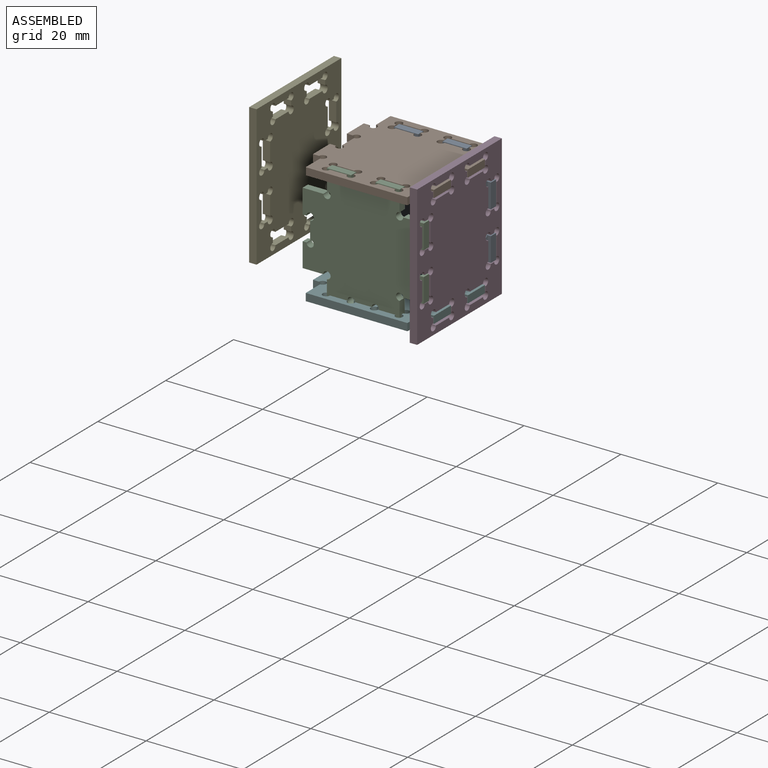
[diagram: assembled view]
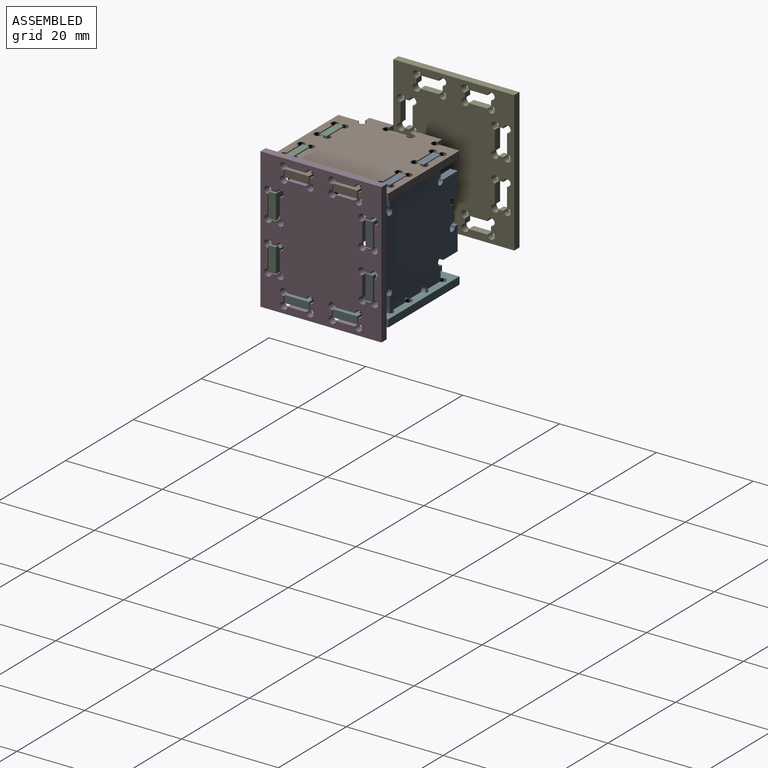
[diagram: assembled view, second angle]
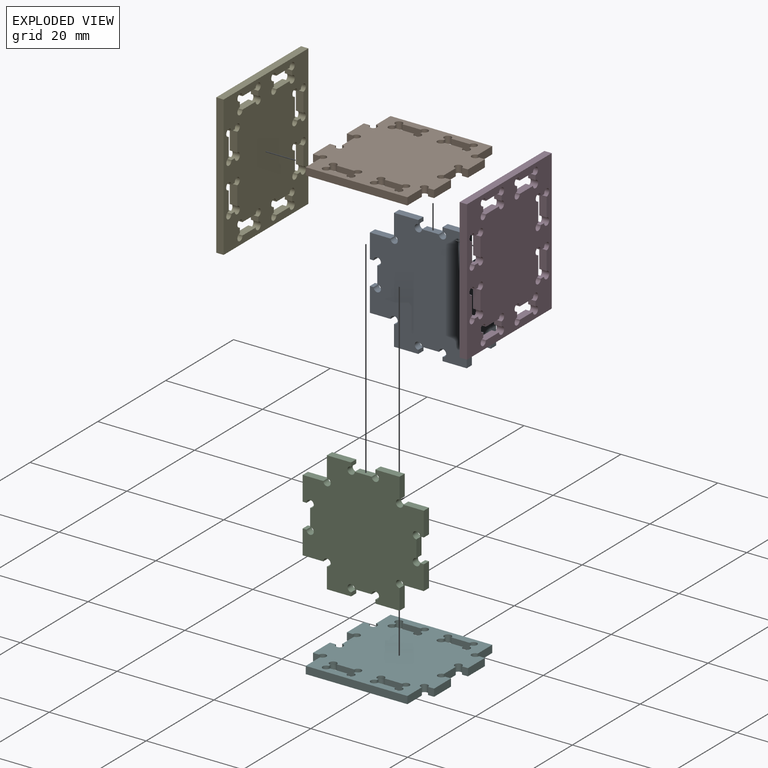
[diagram: exploded view]
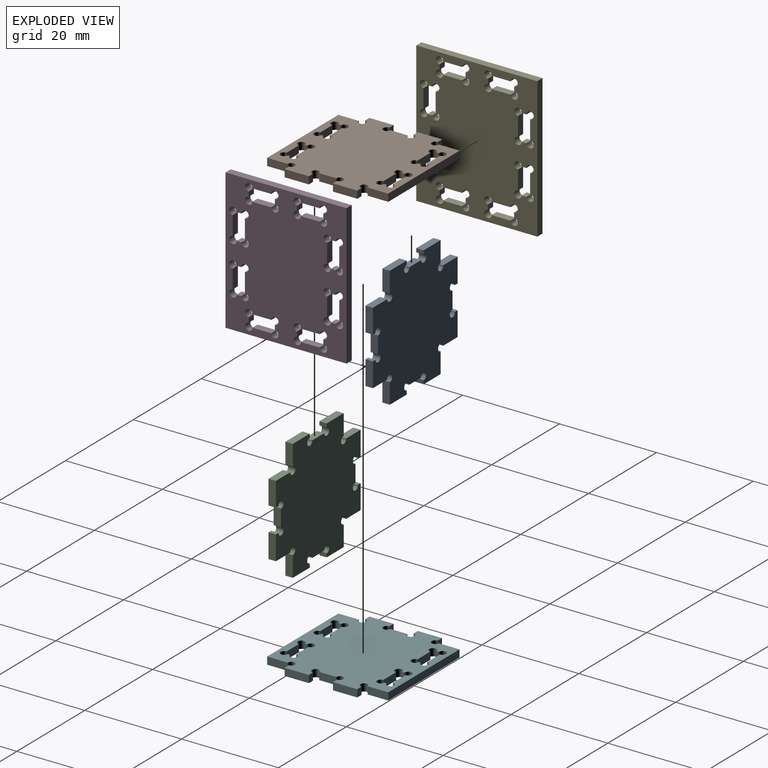
[diagram: exploded view, second angle]
ASSEMBLY  parts=6 mates=4
PART A: 42 faces, bbox 25x1.5x25 mm
  f0: cylinder r=0.75mm len=1.53mm, axis (0,1,0), area 5.4mm2, adj f1,f39,f40,f41
  f1: plane 1.53x0.76mm, normal (-1,0,0), area 1.2mm2, adj f0,f2,f40,f41
  f2: plane 5x1.53mm, normal (0,0,-1), area 7.7mm2, adj f1,f3,f40,f41
  f3: plane 4.23x1.53mm, normal (1,0,0), area 6.5mm2, adj f2,f4,f40,f41
  f4: cylinder r=0.75mm len=1.53mm, axis (0,1,0), area 5.4mm2, adj f3,f5,f40,f41
  f5: plane 4.24x1.53mm, normal (0,0,-1), area 6.5mm2, adj f4,f6,f40,f41
  f6: plane 5x1.53mm, normal (1,0,0), area 7.6mm2, adj f5,f7,f40,f41
  f7: plane 1.53x0.77mm, normal (0,0,1), area 1.2mm2, adj f6,f8,f40,f41
  f8: cylinder r=0.75mm len=1.53mm, axis (0,1,0), area 5.4mm2, adj f7,f9,f40,f41
  f9: plane 3.5x1.53mm, normal (1,0,0), area 5.4mm2, adj f8,f10,f40,f41
  f10: cylinder r=0.75mm len=1.53mm, axis (0,1,0), area 5.4mm2, adj f9,f11,f40,f41
  f11: plane 1.53x0.78mm, normal (0,0,-1), area 1.2mm2, adj f10,f12,f40,f41
  f12: plane 5x1.53mm, normal (1,0,0), area 7.7mm2, adj f11,f13,f40,f41
  f13: plane 4.25x1.53mm, normal (0,0,1), area 6.5mm2, adj f12,f14,f40,f41
  f14: cylinder r=0.75mm len=1.53mm, axis (0,1,0), area 5.4mm2, adj f13,f15,f40,f41
  f15: plane 4.25x1.53mm, normal (1,0,0), area 6.5mm2, adj f14,f16,f40,f41
  f16: plane 5x1.53mm, normal (0,0,1), area 7.7mm2, adj f15,f17,f40,f41
  f17: plane 1.53x0.78mm, normal (-1,0,0), area 1.2mm2, adj f16,f18,f40,f41
  f18: cylinder r=0.75mm len=1.53mm, axis (0,1,0), area 5.4mm2, adj f17,f19,f40,f41
  f19: plane 3.5x1.53mm, normal (0,0,1), area 5.4mm2, adj f18,f20,f40,f41
  f20: cylinder r=0.75mm len=1.53mm, axis (0,1,0), area 5.4mm2, adj f19,f21,f40,f41
  f21: plane 1.53x0.78mm, normal (1,0,0), area 1.2mm2, adj f20,f22,f40,f41
  f22: plane 5x1.53mm, normal (0,0,1), area 7.7mm2, adj f21,f23,f40,f41
  f23: plane 4.27x1.53mm, normal (-1,0,0), area 6.5mm2, adj f22,f24,f40,f41
  f24: cylinder r=0.75mm len=1.53mm, axis (0,1,0), area 5.5mm2, adj f23,f25,f40,f41
  f25: plane 4.27x1.53mm, normal (0,0,1), area 6.5mm2, adj f24,f26,f40,f41
  f26: plane 5x1.53mm, normal (-1,0,0), area 7.7mm2, adj f25,f27,f40,f41
  f27: plane 1.53x0.79mm, normal (0,0,-1), area 1.2mm2, adj f26,f28,f40,f41
  f28: cylinder r=0.75mm len=1.53mm, axis (0,1,0), area 5.4mm2, adj f27,f29,f40,f41
  f29: plane 3.49x1.53mm, normal (-1,0,0), area 5.3mm2, adj f28,f30,f40,f41
  f30: cylinder r=0.75mm len=1.53mm, axis (0,1,0), area 5.4mm2, adj f29,f31,f40,f41
  f31: plane 1.53x0.79mm, normal (0,0,1), area 1.2mm2, adj f30,f32,f40,f41
  f32: plane 5x1.53mm, normal (-1,0,0), area 7.6mm2, adj f31,f33,f40,f41
  f33: plane 4.27x1.53mm, normal (0,0,-1), area 6.5mm2, adj f32,f34,f40,f41
  f34: cylinder r=0.75mm len=1.53mm, axis (0,1,0), area 5.4mm2, adj f33,f35,f40,f41
  f35: plane 4.24x1.53mm, normal (-1,0,0), area 6.5mm2, adj f34,f36,f40,f41
  f36: plane 5x1.53mm, normal (0,0,-1), area 7.7mm2, adj f35,f37,f40,f41
  f37: plane 1.53x0.77mm, normal (1,0,0), area 1.2mm2, adj f36,f38,f40,f41
  f38: cylinder r=0.75mm len=1.53mm, axis (0,1,0), area 5.4mm2, adj f37,f39,f40,f41
  f39: plane 3.5x1.53mm, normal (0,0,-1), area 5.4mm2, adj f0,f38,f40,f41
  f40: plane 25x25mm, normal (0,-1,0), area 478.5mm2, adj f0,f1,f2,f3,f4,f5,f6,f7
  f41: plane 25x25mm, normal (0,1,0), area 478.5mm2, adj f0,f1,f2,f3,f4,f5,f6,f7
PART B: 62 faces, bbox 25x25x1.5 mm
  f0: cylinder r=0.75mm len=1.53mm, axis (0,0,1), area 5.4mm2, adj f1,f59,f60,f61
  f1: plane 1.53x0.5mm, normal (1,0,0), area 0.8mm2, adj f0,f2,f60,f61
  f2: cylinder r=0.75mm len=1.53mm, axis (0,0,1), area 5.4mm2, adj f1,f3,f60,f61
  f3: plane 3.79x1.53mm, normal (0,-1,0), area 5.8mm2, adj f2,f4,f60,f61
  f4: cylinder r=0.75mm len=1.53mm, axis (0,0,1), area 5.4mm2, adj f3,f5,f60,f61
  f5: plane 1.53x0.5mm, normal (-1,0,0), area 0.8mm2, adj f4,f6,f60,f61
  f6: cylinder r=0.75mm len=1.53mm, axis (0,0,1), area 5.4mm2, adj f5,f59,f60,f61
  f7: cylinder r=0.75mm len=1.53mm, axis (0,0,1), area 5.4mm2, adj f8,f55,f60,f61
  f8: plane 1.53x0.51mm, normal (1,0,0), area 0.8mm2, adj f7,f9,f60,f61
  f9: cylinder r=0.75mm len=1.53mm, axis (0,0,1), area 5.5mm2, adj f8,f10,f60,f61
  f10: plane 3.81x1.53mm, normal (0,-1,0), area 5.8mm2, adj f9,f11,f60,f61
  f11: cylinder r=0.75mm len=1.53mm, axis (0,0,1), area 5.4mm2, adj f10,f12,f60,f61
  f12: plane 1.53x0.51mm, normal (-1,0,0), area 0.8mm2, adj f11,f13,f60,f61
  f13: cylinder r=0.75mm len=1.53mm, axis (0,0,1), area 5.4mm2, adj f12,f55,f60,f61
  f14: cylinder r=0.75mm len=1.53mm, axis (0,0,1), area 5.4mm2, adj f15,f56,f60,f61
  f15: plane 1.53x1.25mm, normal (0,1,0), area 1.9mm2, adj f14,f16,f60,f61
  f16: plane 5x1.53mm, normal (-1,0,0), area 7.6mm2, adj f15,f17,f60,f61
  f17: plane 1.53x1.24mm, normal (0,-1,0), area 1.9mm2, adj f16,f18,f60,f61
  f18: cylinder r=0.75mm len=1.53mm, axis (0,0,1), area 5.4mm2, adj f17,f19,f60,f61
  f19: plane 3.5x1.53mm, normal (-1,0,0), area 5.4mm2, adj f18,f20,f60,f61
  f20: cylinder r=0.75mm len=1.53mm, axis (0,0,1), area 5.4mm2, adj f19,f21,f60,f61
  f21: plane 1.53x1.25mm, normal (0,1,0), area 1.9mm2, adj f20,f22,f60,f61
  f22: plane 5x1.53mm, normal (-1,0,0), area 7.6mm2, adj f21,f23,f60,f61
  f23: plane 1.53x1.27mm, normal (0,-1,0), area 1.9mm2, adj f22,f24,f60,f61
  f24: cylinder r=0.75mm len=1.53mm, axis (0,0,1), area 5.4mm2, adj f23,f25,f60,f61
  f25: plane 4.23x1.53mm, normal (-1,0,0), area 6.5mm2, adj f24,f26,f60,f61
  f26: plane 21x1.53mm, normal (0,-1,0), area 32.1mm2, adj f25,f27,f60,f61
  f27: plane 4.25x1.53mm, normal (1,0,0), area 6.5mm2, adj f26,f28,f60,f61
  f28: cylinder r=0.75mm len=1.53mm, axis (0,0,1), area 5.4mm2, adj f27,f29,f60,f61
  f29: plane 1.53x1.26mm, normal (0,-1,0), area 1.9mm2, adj f28,f30,f60,f61
  f30: plane 5x1.53mm, normal (1,0,0), area 7.6mm2, adj f29,f31,f60,f61
  f31: plane 1.53x1.24mm, normal (0,1,0), area 1.9mm2, adj f30,f32,f60,f61
  f32: cylinder r=0.75mm len=1.53mm, axis (0,0,1), area 5.4mm2, adj f31,f33,f60,f61
  f33: plane 3.5x1.53mm, normal (1,0,0), area 5.4mm2, adj f32,f34,f60,f61
  f34: cylinder r=0.75mm len=1.53mm, axis (0,0,1), area 5.4mm2, adj f33,f35,f60,f61
  f35: plane 1.53x1.24mm, normal (0,-1,0), area 1.9mm2, adj f34,f36,f60,f61
  f36: plane 5x1.53mm, normal (1,0,0), area 7.6mm2, adj f35,f37,f60,f61
  f37: plane 1.53x1.25mm, normal (0,1,0), area 1.9mm2, adj f36,f38,f60,f61
  f38: cylinder r=0.75mm len=1.53mm, axis (0,0,1), area 5.4mm2, adj f37,f39,f60,f61
  f39: plane 4.25x1.53mm, normal (1,0,0), area 6.5mm2, adj f38,f40,f60,f61
  f40: plane 21x1.53mm, normal (0,1,0), area 32.1mm2, adj f39,f56,f60,f61
  f41: cylinder r=0.75mm len=1.53mm, axis (0,0,1), area 5.4mm2, adj f42,f57,f60,f61
  f42: plane 3.62x1.53mm, normal (0,-1,0), area 5.5mm2, adj f41,f43,f60,f61
  f43: cylinder r=0.75mm len=1.53mm, axis (0,0,1), area 5.4mm2, adj f42,f44,f60,f61
  f44: plane 1.53x0.49mm, normal (-1,0,0), area 0.8mm2, adj f43,f45,f60,f61
  f45: cylinder r=0.75mm len=1.53mm, axis (0,0,1), area 5.4mm2, adj f44,f46,f60,f61
  f46: plane 3.6x1.53mm, normal (0,1,0), area 5.5mm2, adj f45,f47,f60,f61
  f47: cylinder r=0.75mm len=1.53mm, axis (0,0,1), area 5.4mm2, adj f46,f57,f60,f61
  f48: cylinder r=0.75mm len=1.53mm, axis (0,0,1), area 5.4mm2, adj f49,f58,f60,f61
  f49: plane 3.59x1.53mm, normal (0,-1,0), area 5.5mm2, adj f48,f50,f60,f61
  f50: cylinder r=0.75mm len=1.53mm, axis (0,0,1), area 5.4mm2, adj f49,f51,f60,f61
  f51: plane 1.53x0.47mm, normal (-1,0,0), area 0.7mm2, adj f50,f52,f60,f61
  f52: cylinder r=0.75mm len=1.53mm, axis (0,0,1), area 5.3mm2, adj f51,f53,f60,f61
  f53: plane 3.59x1.53mm, normal (0,1,0), area 5.5mm2, adj f52,f54,f60,f61
  f54: cylinder r=0.75mm len=1.53mm, axis (0,0,1), area 5.5mm2, adj f53,f58,f60,f61
  f55: plane 3.78x1.53mm, normal (0,1,0), area 5.8mm2, adj f7,f13,f60,f61
  f56: plane 4.25x1.53mm, normal (-1,0,0), area 6.5mm2, adj f14,f40,f60,f61
  f57: plane 1.53x0.46mm, normal (1,0,0), area 0.7mm2, adj f41,f47,f60,f61
  f58: plane 1.53x0.52mm, normal (1,0,0), area 0.8mm2, adj f48,f54,f60,f61
  f59: plane 3.79x1.53mm, normal (0,1,0), area 5.8mm2, adj f0,f6,f60,f61
  f60: plane 25x25mm, normal (0,0,-1), area 491.6mm2, adj f0,f1,f2,f3,f4,f5,f6,f7
  f61: plane 25x25mm, normal (0,0,1), area 491.6mm2, adj f0,f1,f2,f3,f4,f5,f6,f7
PART C: same geometry as A
PART D: 70 faces, bbox 1.5x25x29 mm
  f0: plane 25x1.53mm, normal (0,0,1), area 38.3mm2, adj f1,f67,f68,f69
  f1: plane 29x1.53mm, normal (0,-1,0), area 44.4mm2, adj f0,f2,f68,f69
  f2: plane 25x1.53mm, normal (0,0,-1), area 38.3mm2, adj f1,f67,f68,f69
  f3: cylinder r=0.75mm len=1.53mm, axis (-1,0,0), area 5.4mm2, adj f4,f59,f68,f69
  f4: plane 1.53x1.01mm, normal (0,-1,0), area 1.6mm2, adj f3,f5,f68,f69
  f5: cylinder r=0.75mm len=1.53mm, axis (-1,0,0), area 5.4mm2, adj f4,f6,f68,f69
  f6: plane 3.9x1.53mm, normal (0,0,1), area 6mm2, adj f5,f7,f68,f69
  f7: cylinder r=0.75mm len=1.53mm, axis (-1,0,0), area 5.4mm2, adj f6,f8,f68,f69
  f8: plane 1.53x1mm, normal (0,1,0), area 1.5mm2, adj f7,f9,f68,f69
  f9: cylinder r=0.75mm len=1.53mm, axis (-1,0,0), area 5.4mm2, adj f8,f59,f68,f69
  f10: cylinder r=0.75mm len=1.53mm, axis (-1,0,0), area 5.4mm2, adj f11,f60,f68,f69
  f11: plane 1.53x0.99mm, normal (0,1,0), area 1.5mm2, adj f10,f12,f68,f69
  f12: cylinder r=0.75mm len=1.53mm, axis (-1,0,0), area 5.4mm2, adj f11,f13,f68,f69
  f13: plane 3.9x1.53mm, normal (0,0,-1), area 6mm2, adj f12,f14,f68,f69
  f14: cylinder r=0.75mm len=1.53mm, axis (-1,0,0), area 5.4mm2, adj f13,f15,f68,f69
  f15: plane 1.53x0.94mm, normal (0,-1,0), area 1.4mm2, adj f14,f16,f68,f69
  f16: cylinder r=0.75mm len=1.53mm, axis (-1,0,0), area 5.4mm2, adj f15,f60,f68,f69
  f17: cylinder r=0.75mm len=1.53mm, axis (-1,0,0), area 5.4mm2, adj f18,f61,f68,f69
  f18: plane 1.53x1.02mm, normal (0,0,-1), area 1.6mm2, adj f17,f19,f68,f69
  f19: cylinder r=0.75mm len=1.53mm, axis (-1,0,0), area 5.5mm2, adj f18,f20,f68,f69
  f20: plane 3.9x1.53mm, normal (0,-1,0), area 6mm2, adj f19,f21,f68,f69
  f21: cylinder r=0.75mm len=1.53mm, axis (-1,0,0), area 5.5mm2, adj f20,f22,f68,f69
  f22: plane 1.53x1.01mm, normal (0,0,1), area 1.6mm2, adj f21,f23,f68,f69
  f23: cylinder r=0.75mm len=1.53mm, axis (-1,0,0), area 5.3mm2, adj f22,f61,f68,f69
  f24: cylinder r=0.75mm len=1.53mm, axis (-1,0,0), area 5.4mm2, adj f25,f62,f68,f69
  f25: plane 1.53x1.02mm, normal (0,0,-1), area 1.6mm2, adj f24,f26,f68,f69
  f26: cylinder r=0.75mm len=1.53mm, axis (-1,0,0), area 5.5mm2, adj f25,f27,f68,f69
  f27: plane 3.91x1.53mm, normal (0,-1,0), area 6mm2, adj f26,f28,f68,f69
  f28: cylinder r=0.75mm len=1.53mm, axis (-1,0,0), area 5.4mm2, adj f27,f29,f68,f69
  f29: plane 1.53x1mm, normal (0,0,1), area 1.5mm2, adj f28,f30,f68,f69
  f30: cylinder r=0.75mm len=1.53mm, axis (-1,0,0), area 5.4mm2, adj f29,f62,f68,f69
  f31: plane 1.53x1.02mm, normal (0,1,0), area 1.6mm2, adj f32,f63,f68,f69
  f32: cylinder r=0.75mm len=1.53mm, axis (-1,0,0), area 5.4mm2, adj f31,f33,f68,f69
  f33: plane 3.91x1.53mm, normal (0,0,-1), area 6mm2, adj f32,f34,f68,f69
  f34: cylinder r=0.75mm len=1.53mm, axis (-1,0,0), area 5.4mm2, adj f33,f35,f68,f69
  f35: plane 1.53x0.98mm, normal (0,-1,0), area 1.5mm2, adj f34,f36,f68,f69
  f36: cylinder r=0.75mm len=1.53mm, axis (-1,0,0), area 5.4mm2, adj f35,f37,f68,f69
  f37: plane 3.89x1.53mm, normal (0,0,1), area 6mm2, adj f36,f63,f68,f69
  f38: plane 1.53x1.03mm, normal (0,1,0), area 1.6mm2, adj f39,f64,f68,f69
  f39: cylinder r=0.75mm len=1.53mm, axis (-1,0,0), area 5.5mm2, adj f38,f40,f68,f69
  f40: plane 3.91x1.53mm, normal (0,0,-1), area 6mm2, adj f39,f41,f68,f69
  f41: cylinder r=0.75mm len=1.53mm, axis (-1,0,0), area 5.4mm2, adj f40,f42,f68,f69
  f42: plane 1.53x1.01mm, normal (0,-1,0), area 1.5mm2, adj f41,f43,f68,f69
  f43: cylinder r=0.75mm len=1.53mm, axis (-1,0,0), area 5.4mm2, adj f42,f44,f68,f69
  f44: plane 3.9x1.53mm, normal (0,0,1), area 6mm2, adj f43,f64,f68,f69
  f45: cylinder r=0.75mm len=1.53mm, axis (-1,0,0), area 5.4mm2, adj f46,f65,f68,f69
  f46: plane 1.53x0.99mm, normal (0,0,-1), area 1.5mm2, adj f45,f47,f68,f69
  f47: cylinder r=0.75mm len=1.53mm, axis (-1,0,0), area 5.4mm2, adj f46,f48,f68,f69
  f48: plane 3.9x1.53mm, normal (0,-1,0), area 6mm2, adj f47,f49,f68,f69
  f49: cylinder r=0.75mm len=1.53mm, axis (-1,0,0), area 5.4mm2, adj f48,f50,f68,f69
  f50: plane 1.53x0.99mm, normal (0,0,1), area 1.5mm2, adj f49,f51,f68,f69
  f51: cylinder r=0.75mm len=1.53mm, axis (-1,0,0), area 5.4mm2, adj f50,f65,f68,f69
  f52: cylinder r=0.75mm len=1.53mm, axis (-1,0,0), area 5.4mm2, adj f53,f66,f68,f69
  f53: plane 1.53x0.97mm, normal (0,0,-1), area 1.5mm2, adj f52,f54,f68,f69
  f54: cylinder r=0.75mm len=1.53mm, axis (-1,0,0), area 5.4mm2, adj f53,f55,f68,f69
  f55: plane 3.92x1.53mm, normal (0,-1,0), area 6mm2, adj f54,f56,f68,f69
  f56: cylinder r=0.75mm len=1.53mm, axis (-1,0,0), area 5.4mm2, adj f55,f57,f68,f69
  f57: plane 1.53x1.02mm, normal (0,0,1), area 1.6mm2, adj f56,f58,f68,f69
  f58: cylinder r=0.75mm len=1.53mm, axis (-1,0,0), area 5.5mm2, adj f57,f66,f68,f69
  f59: plane 3.87x1.53mm, normal (0,0,-1), area 5.9mm2, adj f3,f9,f68,f69
  f60: plane 3.91x1.53mm, normal (0,0,1), area 6mm2, adj f10,f16,f68,f69
  f61: plane 3.89x1.53mm, normal (0,1,0), area 6mm2, adj f17,f23,f68,f69
  f62: plane 3.89x1.53mm, normal (0,1,0), area 6mm2, adj f24,f30,f68,f69
  f63: cylinder r=0.75mm len=1.53mm, axis (-1,0,0), area 5.4mm2, adj f31,f37,f68,f69
  f64: cylinder r=0.75mm len=1.53mm, axis (-1,0,0), area 5.4mm2, adj f38,f44,f68,f69
  f65: plane 3.91x1.53mm, normal (0,1,0), area 6mm2, adj f45,f51,f68,f69
  f66: plane 3.93x1.53mm, normal (0,1,0), area 6mm2, adj f52,f58,f68,f69
  f67: plane 29x1.53mm, normal (0,1,0), area 44.4mm2, adj f0,f2,f68,f69
  f68: plane 29x25mm, normal (1,0,0), area 574.6mm2, adj f0,f1,f2,f3,f4,f5,f6,f7
  f69: plane 29x25mm, normal (-1,0,0), area 574.6mm2, adj f0,f1,f2,f3,f4,f5,f6,f7
PART E: same geometry as D
PART F: same geometry as B
PLACE A t=(21.88,39.1,32.8)mm
PLACE B t=(67.06,24.11,64.93)mm
PLACE C t=(21.99,19.15,32.8)mm
PLACE D t=(39.31,-14.14,37.91)mm
PLACE E t=(4.19,-11.31,42.41)mm
PLACE F t=(67.06,24.11,41.46)mm
MATE fastened C.f2 <-> F.f60  axis (0,0,-1) through (43.49,18.39,39.93)mm
MATE fastened C.f16 <-> B.f61  axis (0,0,1) through (43.49,18.39,64.93)mm
MATE fastened B.f36 <-> D.f68  axis (1,0,0) through (50.84,33.36,64.17)mm
MATE fastened A.f2 <-> F.f60  axis (0,0,-1) through (43.38,38.34,39.93)mm
